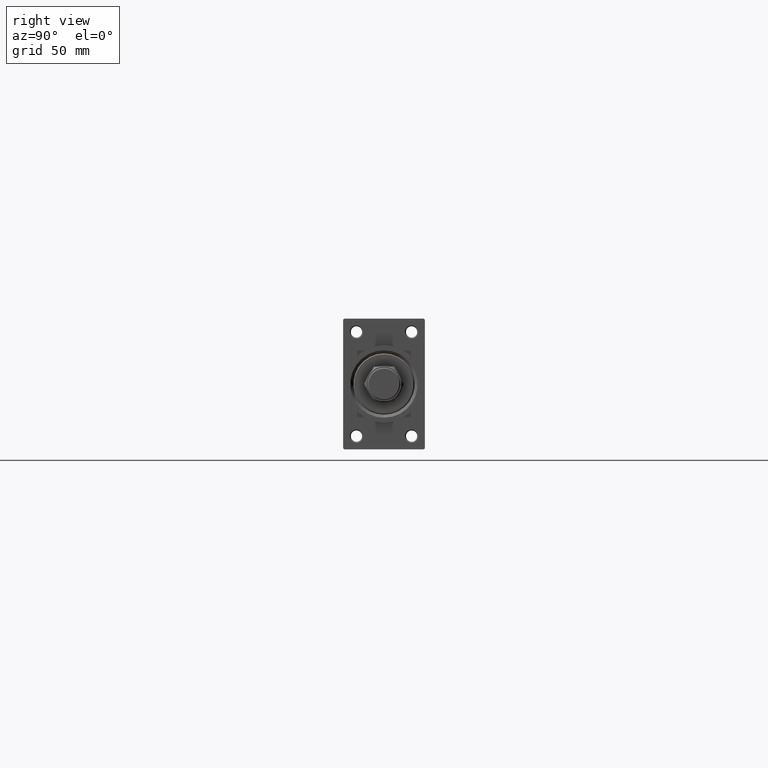
[diagram: clean part render]
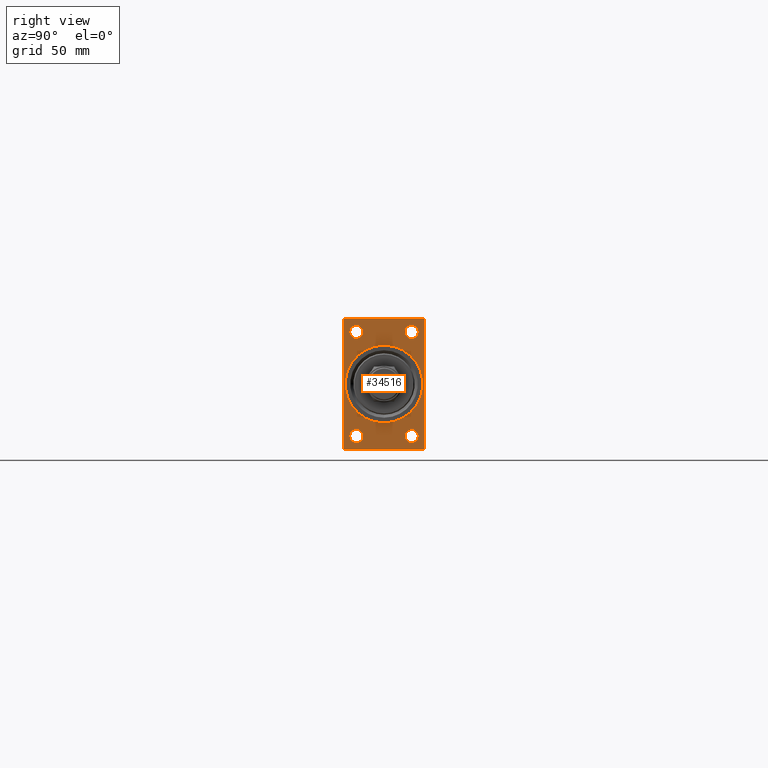
[diagram: same view with one face highlighted and labeled with its STEP entity id]
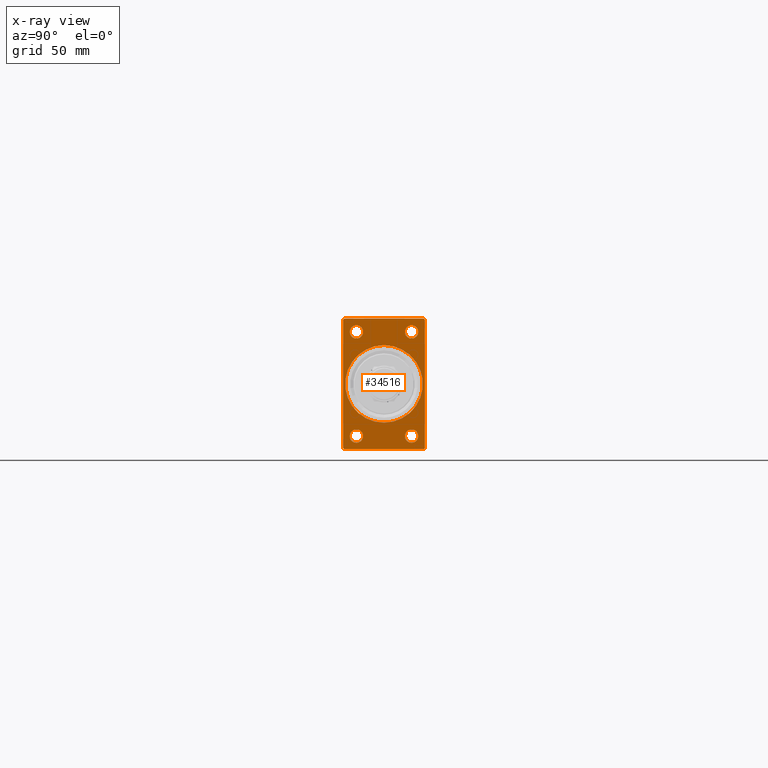
[diagram: x-ray of the same camera — body ghosted, the highlighted face saturated]
A machine part, right view. The second image highlights one B-rep face of the part: STEP entity #34516.
The next image is the same camera in x-ray: the body ghosted, the highlighted face saturated — about 0% of this face is hidden behind the body in this view.
In plain terms, the highlighted planar face has unit normal (-1, 0, 0).
Its self-contained STEP definition (entity closure, byte-faithful):
#392 = CARTESIAN_POINT ( 'NONE',  ( 289.0000000000000000, 20.00000000000000000, 32.00000000000000000 ) ) ;
#735 = ORIENTED_EDGE ( 'NONE', *, *, #46672, .T. ) ;
#827 = DIRECTION ( 'NONE',  ( 0.000000000000000000, -1.000000000000000000, 0.000000000000000000 ) ) ;
#982 = AXIS2_PLACEMENT_3D ( 'NONE', #42985, #12185, #4791 ) ;
#1106 = EDGE_CURVE ( 'NONE', #34016, #18450, #16700, .T. ) ;
#1290 = DIRECTION ( 'NONE',  ( -1.000000000000000000, -0.000000000000000000, -0.000000000000000000 ) ) ;
#1959 = EDGE_CURVE ( 'NONE', #22022, #41846, #24184, .T. ) ;
#2121 = EDGE_CURVE ( 'NONE', #14028, #13524, #26975, .T. ) ;
#2244 = CIRCLE ( 'NONE', #29787, 3.250000000000030642 ) ;
#2566 = AXIS2_PLACEMENT_3D ( 'NONE', #26378, #10622, #18005 ) ;
#2575 = EDGE_CURVE ( 'NONE', #21398, #37484, #28929, .T. ) ;
#2783 = AXIS2_PLACEMENT_3D ( 'NONE', #33362, #4257, #48413 ) ;
#3198 = CARTESIAN_POINT ( 'NONE',  ( 289.0000000000000000, 13.49999999999999822, 28.75000000000003553 ) ) ;
#3476 = AXIS2_PLACEMENT_3D ( 'NONE', #37189, #33497, #48553 ) ;
#3693 = CARTESIAN_POINT ( 'NONE',  ( 289.0000000000000000, 19.50000000000002842, -32.00000000000000000 ) ) ;
#4139 = ORIENTED_EDGE ( 'NONE', *, *, #1106, .T. ) ;
#4248 = CARTESIAN_POINT ( 'NONE',  ( 289.0000000000000000, 20.00000000000000000, -32.00000000000000000 ) ) ;
#4257 = DIRECTION ( 'NONE',  ( -1.000000000000000000, -0.000000000000000000, -0.000000000000000000 ) ) ;
#4637 = VERTEX_POINT ( 'NONE', #47764 ) ;
#4712 = CIRCLE ( 'NONE', #21995, 3.250000000000030642 ) ;
#4745 = EDGE_CURVE ( 'NONE', #45536, #43746, #16151, .T. ) ;
#4791 = DIRECTION ( 'NONE',  ( 0.000000000000000000, 0.000000000000000000, 1.000000000000000000 ) ) ;
#5350 = CARTESIAN_POINT ( 'NONE',  ( 289.0000000000000000, 13.49999999999999822, 25.50000000000000355 ) ) ;
#5388 = VERTEX_POINT ( 'NONE', #3198 ) ;
#5407 = EDGE_CURVE ( 'NONE', #13524, #14028, #18421, .T. ) ;
#5755 = CIRCLE ( 'NONE', #27818, 3.250000000000030642 ) ;
#5845 = ORIENTED_EDGE ( 'NONE', *, *, #37634, .T. ) ;
#6049 = VERTEX_POINT ( 'NONE', #47629 ) ;
#6068 = DIRECTION ( 'NONE',  ( 0.000000000000000000, 0.000000000000000000, 1.000000000000000000 ) ) ;
#6135 = EDGE_LOOP ( 'NONE', ( #32269, #35194 ) ) ;
#6189 = DIRECTION ( 'NONE',  ( -1.000000000000000000, -0.000000000000000000, -0.000000000000000000 ) ) ;
#6668 = CARTESIAN_POINT ( 'NONE',  ( 289.0000000000000000, 2.326828918379970970E-15, -19.00000000000000000 ) ) ;
#6967 = PLANE ( 'NONE',  #42412 ) ;
#6972 = VECTOR ( 'NONE', #41513, 1000.000000000000000 ) ;
#7025 = CARTESIAN_POINT ( 'NONE',  ( 289.0000000000000000, 13.49999999999999822, -22.24999999999996803 ) ) ;
#7042 = CARTESIAN_POINT ( 'NONE',  ( 289.0000000000000000, 13.49999999999999822, -28.75000000000002842 ) ) ;
#7146 = EDGE_LOOP ( 'NONE', ( #9992, #15507, #18396, #47300, #36589, #7268, #9998, #5845 ) ) ;
#7222 = DIRECTION ( 'NONE',  ( -1.000000000000000000, -0.000000000000000000, -0.000000000000000000 ) ) ;
#7268 = ORIENTED_EDGE ( 'NONE', *, *, #18566, .T. ) ;
#7508 = LINE ( 'NONE', #25987, #47153 ) ;
#7688 = DIRECTION ( 'NONE',  ( -0.000000000000000000, 0.000000000000000000, 1.000000000000000000 ) ) ;
#7880 = CARTESIAN_POINT ( 'NONE',  ( 289.0000000000000000, -20.00000000000000000, 31.49999999999999289 ) ) ;
#8108 = AXIS2_PLACEMENT_3D ( 'NONE', #19255, #7222, #41214 ) ;
#8400 = EDGE_LOOP ( 'NONE', ( #20878, #8586 ) ) ;
#8586 = ORIENTED_EDGE ( 'NONE', *, *, #5407, .F. ) ;
#8698 = CARTESIAN_POINT ( 'NONE',  ( 289.0000000000000000, -20.00000000000000000, -31.49999999999997868 ) ) ;
#8919 = CIRCLE ( 'NONE', #8108, 3.250000000000030642 ) ;
#9756 = DIRECTION ( 'NONE',  ( 0.000000000000000000, 0.000000000000000000, 1.000000000000000000 ) ) ;
#9992 = ORIENTED_EDGE ( 'NONE', *, *, #31566, .T. ) ;
#9998 = ORIENTED_EDGE ( 'NONE', *, *, #2575, .T. ) ;
#10622 = DIRECTION ( 'NONE',  ( 1.000000000000000000, 0.000000000000000000, 0.000000000000000000 ) ) ;
#10639 = VERTEX_POINT ( 'NONE', #37870 ) ;
#10656 = FACE_BOUND ( 'NONE', #6135, .T. ) ;
#10900 = FACE_BOUND ( 'NONE', #16752, .T. ) ;
#11254 = EDGE_CURVE ( 'NONE', #10639, #4637, #44499, .T. ) ;
#11473 = DIRECTION ( 'NONE',  ( 0.000000000000000000, 0.000000000000000000, -1.000000000000000000 ) ) ;
#11573 = LINE ( 'NONE', #7880, #30689 ) ;
#12185 = DIRECTION ( 'NONE',  ( -1.000000000000000000, -0.000000000000000000, -0.000000000000000000 ) ) ;
#12190 = CARTESIAN_POINT ( 'NONE',  ( 289.0000000000000000, -13.50000000000000178, 22.24999999999997158 ) ) ;
#13277 = VECTOR ( 'NONE', #827, 1000.000000000000000 ) ;
#13315 = CARTESIAN_POINT ( 'NONE',  ( 289.0000000000000000, -20.00000000000000000, 31.49999999999999289 ) ) ;
#13330 = DIRECTION ( 'NONE',  ( 0.000000000000000000, 0.000000000000000000, 1.000000000000000000 ) ) ;
#13504 = VERTEX_POINT ( 'NONE', #13315 ) ;
#13524 = VERTEX_POINT ( 'NONE', #6668 ) ;
#13679 = VECTOR ( 'NONE', #16631, 1000.000000000000114 ) ;
#13814 = CARTESIAN_POINT ( 'NONE',  ( 289.0000000000000000, 20.00000000000000000, -31.50000000000002842 ) ) ;
#14028 = VERTEX_POINT ( 'NONE', #31850 ) ;
#15060 = AXIS2_PLACEMENT_3D ( 'NONE', #23669, #38715, #9756 ) ;
#15507 = ORIENTED_EDGE ( 'NONE', *, *, #4745, .T. ) ;
#15823 = CARTESIAN_POINT ( 'NONE',  ( 289.0000000000000000, 20.00000000000000000, -31.50000000000002842 ) ) ;
#16151 = LINE ( 'NONE', #46248, #13679 ) ;
#16256 = CARTESIAN_POINT ( 'NONE',  ( 289.0000000000000000, 20.00000000000000000, 31.50000000000002842 ) ) ;
#16631 = DIRECTION ( 'NONE',  ( 0.000000000000000000, 0.7071067811865524577, -0.7071067811865425767 ) ) ;
#16700 = CIRCLE ( 'NONE', #22169, 3.250000000000030642 ) ;
#16752 = EDGE_LOOP ( 'NONE', ( #18608, #4139 ) ) ;
#17461 = CARTESIAN_POINT ( 'NONE',  ( 289.0000000000000000, -19.49999999999997158, -32.00000000000000000 ) ) ;
#17870 = EDGE_LOOP ( 'NONE', ( #46853, #43147 ) ) ;
#18005 = DIRECTION ( 'NONE',  ( 0.000000000000000000, 0.000000000000000000, -1.000000000000000000 ) ) ;
#18396 = ORIENTED_EDGE ( 'NONE', *, *, #19922, .F. ) ;
#18421 = CIRCLE ( 'NONE', #3476, 19.00000000000000000 ) ;
#18450 = VERTEX_POINT ( 'NONE', #7042 ) ;
#18566 = EDGE_CURVE ( 'NONE', #20388, #21398, #45470, .T. ) ;
#18608 = ORIENTED_EDGE ( 'NONE', *, *, #41187, .T. ) ;
#18923 = EDGE_CURVE ( 'NONE', #4637, #10639, #2244, .T. ) ;
#19255 = CARTESIAN_POINT ( 'NONE',  ( 289.0000000000000000, 13.49999999999999822, 25.50000000000000355 ) ) ;
#19308 = CARTESIAN_POINT ( 'NONE',  ( 289.0000000000000000, 19.50000000000000000, 32.00000000000000000 ) ) ;
#19840 = ORIENTED_EDGE ( 'NONE', *, *, #21626, .T. ) ;
#19922 = EDGE_CURVE ( 'NONE', #22022, #43746, #45430, .T. ) ;
#20241 = DIRECTION ( 'NONE',  ( -0.000000000000000000, 0.7071067811865474617, 0.7071067811865474617 ) ) ;
#20388 = VERTEX_POINT ( 'NONE', #16256 ) ;
#20878 = ORIENTED_EDGE ( 'NONE', *, *, #2121, .F. ) ;
#21398 = VERTEX_POINT ( 'NONE', #38156 ) ;
#21626 = EDGE_CURVE ( 'NONE', #47529, #40588, #4712, .T. ) ;
#21995 = AXIS2_PLACEMENT_3D ( 'NONE', #45759, #41309, #33674 ) ;
#22022 = VERTEX_POINT ( 'NONE', #3693 ) ;
#22169 = AXIS2_PLACEMENT_3D ( 'NONE', #27900, #6189, #13330 ) ;
#22511 = DIRECTION ( 'NONE',  ( 0.000000000000000000, 0.000000000000000000, -1.000000000000000000 ) ) ;
#22693 = CARTESIAN_POINT ( 'NONE',  ( 289.0000000000000000, 0.000000000000000000, 0.000000000000000000 ) ) ;
#23669 = CARTESIAN_POINT ( 'NONE',  ( 289.0000000000000000, 13.49999999999999822, -25.50000000000000000 ) ) ;
#24184 = LINE ( 'NONE', #15823, #38767 ) ;
#24537 = CIRCLE ( 'NONE', #982, 3.250000000000030642 ) ;
#24646 = DIRECTION ( 'NONE',  ( 0.000000000000000000, 0.000000000000000000, 1.000000000000000000 ) ) ;
#25679 = FACE_BOUND ( 'NONE', #8400, .T. ) ;
#25987 = CARTESIAN_POINT ( 'NONE',  ( 289.0000000000000000, -20.00000000000000000, 31.99999999999999289 ) ) ;
#26378 = CARTESIAN_POINT ( 'NONE',  ( 289.0000000000000000, 0.000000000000000000, 0.000000000000000000 ) ) ;
#26411 = DIRECTION ( 'NONE',  ( -1.000000000000000000, 0.000000000000000000, -0.000000000000000000 ) ) ;
#26601 = DIRECTION ( 'NONE',  ( -0.000000000000000000, -0.7071067811865474617, -0.7071067811865474617 ) ) ;
#26975 = CIRCLE ( 'NONE', #2566, 19.00000000000000000 ) ;
#27399 = CARTESIAN_POINT ( 'NONE',  ( 289.0000000000000000, -13.50000000000000533, -25.49999999999999645 ) ) ;
#27818 = AXIS2_PLACEMENT_3D ( 'NONE', #5350, #43531, #6068 ) ;
#27900 = CARTESIAN_POINT ( 'NONE',  ( 289.0000000000000000, 13.49999999999999822, -25.50000000000000000 ) ) ;
#28929 = LINE ( 'NONE', #43962, #38023 ) ;
#29787 = AXIS2_PLACEMENT_3D ( 'NONE', #27399, #1290, #24646 ) ;
#30689 = VECTOR ( 'NONE', #26601, 1000.000000000000114 ) ;
#31111 = DIRECTION ( 'NONE',  ( 0.000000000000000000, -1.000000000000000000, -1.734723475976807094E-16 ) ) ;
#31566 = EDGE_CURVE ( 'NONE', #13504, #45536, #7508, .T. ) ;
#31850 = CARTESIAN_POINT ( 'NONE',  ( 289.0000000000000000, 0.000000000000000000, 19.00000000000000000 ) ) ;
#32269 = ORIENTED_EDGE ( 'NONE', *, *, #18923, .T. ) ;
#33362 = CARTESIAN_POINT ( 'NONE',  ( 289.0000000000000000, -13.50000000000000533, -25.49999999999999645 ) ) ;
#33497 = DIRECTION ( 'NONE',  ( 1.000000000000000000, 0.000000000000000000, 0.000000000000000000 ) ) ;
#33565 = FACE_BOUND ( 'NONE', #17870, .T. ) ;
#33674 = DIRECTION ( 'NONE',  ( 0.000000000000000000, 0.000000000000000000, 1.000000000000000000 ) ) ;
#34016 = VERTEX_POINT ( 'NONE', #7025 ) ;
#34516 = ADVANCED_FACE ( 'NONE', ( #41441, #10656, #10900, #33565, #25679, #47902 ), #6967, .F. ) ;
#35194 = ORIENTED_EDGE ( 'NONE', *, *, #11254, .T. ) ;
#36589 = ORIENTED_EDGE ( 'NONE', *, *, #45203, .F. ) ;
#37189 = CARTESIAN_POINT ( 'NONE',  ( 289.0000000000000000, 0.000000000000000000, 0.000000000000000000 ) ) ;
#37484 = VERTEX_POINT ( 'NONE', #39206 ) ;
#37634 = EDGE_CURVE ( 'NONE', #37484, #13504, #11573, .T. ) ;
#37870 = CARTESIAN_POINT ( 'NONE',  ( 289.0000000000000000, -13.50000000000000533, -22.24999999999996447 ) ) ;
#38023 = VECTOR ( 'NONE', #31111, 1000.000000000000000 ) ;
#38156 = CARTESIAN_POINT ( 'NONE',  ( 289.0000000000000000, 19.50000000000000000, 32.00000000000000000 ) ) ;
#38715 = DIRECTION ( 'NONE',  ( -1.000000000000000000, -0.000000000000000000, -0.000000000000000000 ) ) ;
#38767 = VECTOR ( 'NONE', #20241, 1000.000000000000114 ) ;
#39206 = CARTESIAN_POINT ( 'NONE',  ( 289.0000000000000000, -19.50000000000000000, 31.99999999999999289 ) ) ;
#40588 = VERTEX_POINT ( 'NONE', #47062 ) ;
#41159 = VECTOR ( 'NONE', #11473, 1000.000000000000000 ) ;
#41187 = EDGE_CURVE ( 'NONE', #18450, #34016, #44168, .T. ) ;
#41214 = DIRECTION ( 'NONE',  ( 0.000000000000000000, 0.000000000000000000, 1.000000000000000000 ) ) ;
#41309 = DIRECTION ( 'NONE',  ( -1.000000000000000000, -0.000000000000000000, -0.000000000000000000 ) ) ;
#41441 = FACE_BOUND ( 'NONE', #46130, .T. ) ;
#41513 = DIRECTION ( 'NONE',  ( 0.000000000000000000, -0.7071067811865671127, 0.7071067811865279218 ) ) ;
#41846 = VERTEX_POINT ( 'NONE', #13814 ) ;
#42412 = AXIS2_PLACEMENT_3D ( 'NONE', #22693, #26411, #7688 ) ;
#42985 = CARTESIAN_POINT ( 'NONE',  ( 289.0000000000000000, -13.50000000000000178, 25.50000000000000355 ) ) ;
#43147 = ORIENTED_EDGE ( 'NONE', *, *, #47844, .T. ) ;
#43531 = DIRECTION ( 'NONE',  ( -1.000000000000000000, -0.000000000000000000, -0.000000000000000000 ) ) ;
#43746 = VERTEX_POINT ( 'NONE', #17461 ) ;
#43962 = CARTESIAN_POINT ( 'NONE',  ( 289.0000000000000000, 20.00000000000000000, 32.00000000000000000 ) ) ;
#44168 = CIRCLE ( 'NONE', #15060, 3.250000000000030642 ) ;
#44499 = CIRCLE ( 'NONE', #2783, 3.250000000000030642 ) ;
#44925 = EDGE_CURVE ( 'NONE', #6049, #5388, #5755, .T. ) ;
#45203 = EDGE_CURVE ( 'NONE', #20388, #41846, #45240, .T. ) ;
#45240 = LINE ( 'NONE', #392, #41159 ) ;
#45430 = LINE ( 'NONE', #4248, #13277 ) ;
#45470 = LINE ( 'NONE', #19308, #6972 ) ;
#45536 = VERTEX_POINT ( 'NONE', #8698 ) ;
#45759 = CARTESIAN_POINT ( 'NONE',  ( 289.0000000000000000, -13.50000000000000178, 25.50000000000000355 ) ) ;
#46130 = EDGE_LOOP ( 'NONE', ( #19840, #735 ) ) ;
#46248 = CARTESIAN_POINT ( 'NONE',  ( 289.0000000000000000, -19.49999999999997158, -32.00000000000000000 ) ) ;
#46672 = EDGE_CURVE ( 'NONE', #40588, #47529, #24537, .T. ) ;
#46853 = ORIENTED_EDGE ( 'NONE', *, *, #44925, .T. ) ;
#47062 = CARTESIAN_POINT ( 'NONE',  ( 289.0000000000000000, -13.50000000000000178, 28.75000000000003197 ) ) ;
#47153 = VECTOR ( 'NONE', #22511, 1000.000000000000000 ) ;
#47300 = ORIENTED_EDGE ( 'NONE', *, *, #1959, .T. ) ;
#47529 = VERTEX_POINT ( 'NONE', #12190 ) ;
#47629 = CARTESIAN_POINT ( 'NONE',  ( 289.0000000000000000, 13.49999999999999822, 22.24999999999997513 ) ) ;
#47764 = CARTESIAN_POINT ( 'NONE',  ( 289.0000000000000000, -13.50000000000000533, -28.75000000000002487 ) ) ;
#47844 = EDGE_CURVE ( 'NONE', #5388, #6049, #8919, .T. ) ;
#47902 = FACE_OUTER_BOUND ( 'NONE', #7146, .T. ) ;
#48413 = DIRECTION ( 'NONE',  ( 0.000000000000000000, 0.000000000000000000, 1.000000000000000000 ) ) ;
#48553 = DIRECTION ( 'NONE',  ( 0.000000000000000000, 0.000000000000000000, -1.000000000000000000 ) ) ;